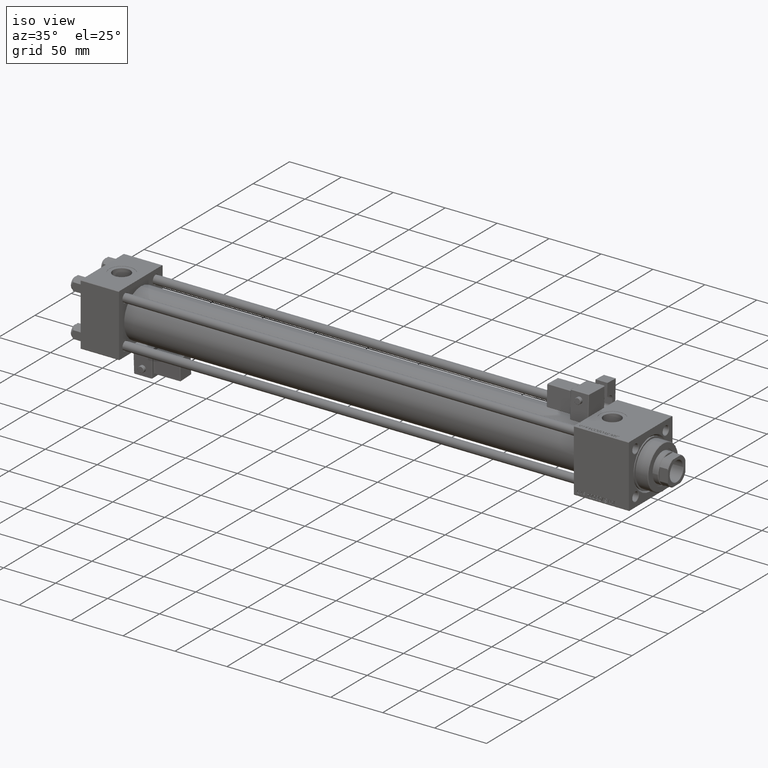
[diagram: clean part render]
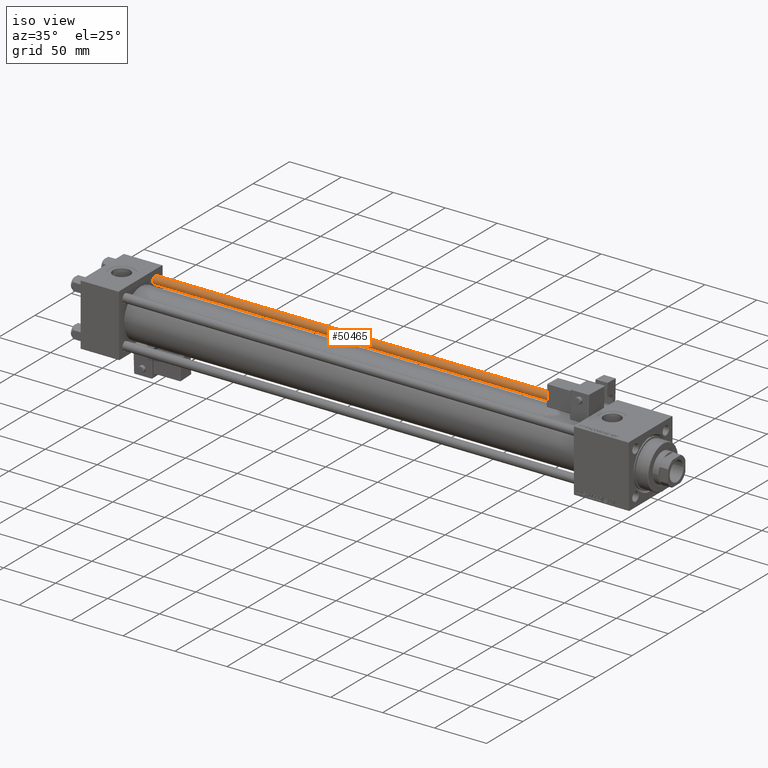
[diagram: same view with one face highlighted and labeled with its STEP entity id]
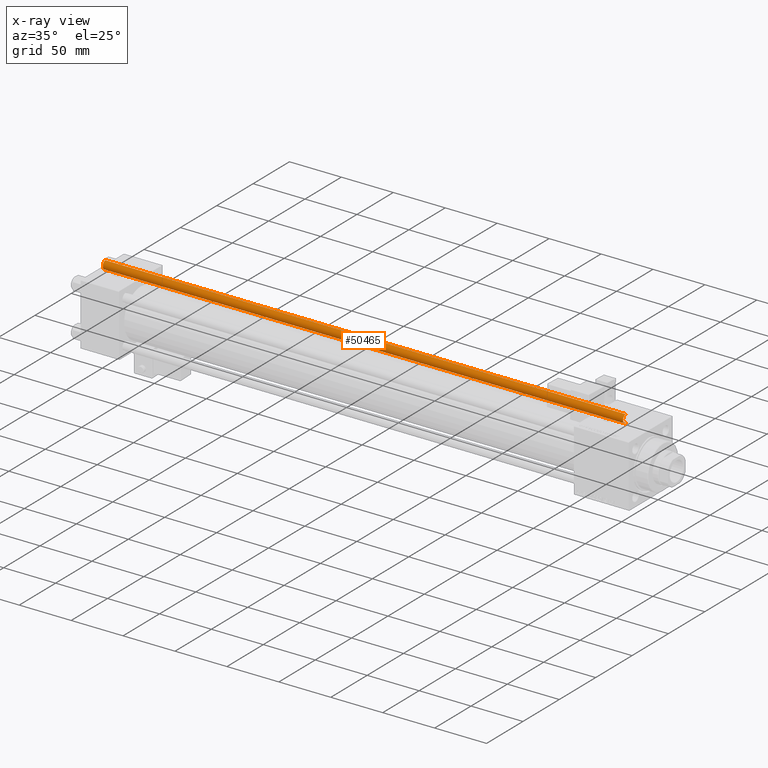
[diagram: x-ray of the same camera — body ghosted, the highlighted face saturated]
A machine part, iso view. The second image highlights one B-rep face of the part: STEP entity #50465.
The next image is the same camera in x-ray: the body ghosted, the highlighted face saturated — about 0% of this face is hidden behind the body in this view.
In plain terms, the highlighted cylindrical surface (edge-blend (fillet) strip) has radius 4 mm, axis along (-1, 0, 0).
Its self-contained STEP definition (entity closure, byte-faithful):
#872 = CARTESIAN_POINT ( 'NONE',  ( 0.000000000000000000, 0.000000000000000000, 502.0000000000000000 ) ) ;
#1559 = CARTESIAN_POINT ( 'NONE',  ( -4.000000000000000000, 0.000000000000000000, 502.0000000000000000 ) ) ;
#2486 = AXIS2_PLACEMENT_3D ( 'NONE', #3539, #44958, #33061 ) ;
#3134 = EDGE_CURVE ( 'NONE', #34039, #7314, #23472, .T. ) ;
#3539 = CARTESIAN_POINT ( 'NONE',  ( 0.000000000000000000, 0.000000000000000000, 0.4999999999999449329 ) ) ;
#7314 = VERTEX_POINT ( 'NONE', #13428 ) ;
#8741 = DIRECTION ( 'NONE',  ( -0.000000000000000000, -0.000000000000000000, -1.000000000000000000 ) ) ;
#9189 = ORIENTED_EDGE ( 'NONE', *, *, #52313, .T. ) ;
#9467 = DIRECTION ( 'NONE',  ( 0.000000000000000000, 0.000000000000000000, -1.000000000000000000 ) ) ;
#9733 = DIRECTION ( 'NONE',  ( 1.000000000000000000, 0.000000000000000000, 0.000000000000000000 ) ) ;
#10793 = ORIENTED_EDGE ( 'NONE', *, *, #19845, .T. ) ;
#13428 = CARTESIAN_POINT ( 'NONE',  ( 4.000000000000000000, 4.898587196589412829E-16, 0.4999999999999449329 ) ) ;
#13521 = CARTESIAN_POINT ( 'NONE',  ( 0.000000000000000000, 0.000000000000000000, 501.4999999999999432 ) ) ;
#14282 = DIRECTION ( 'NONE',  ( -0.000000000000000000, -0.000000000000000000, -1.000000000000000000 ) ) ;
#16044 = VECTOR ( 'NONE', #14282, 1000.000000000000000 ) ;
#16339 = CIRCLE ( 'NONE', #2486, 4.000000000000000000 ) ;
#16919 = CARTESIAN_POINT ( 'NONE',  ( -4.000000000000000000, 0.000000000000000000, 0.4999999999999449329 ) ) ;
#17407 = DIRECTION ( 'NONE',  ( -1.000000000000000000, 0.000000000000000000, 0.000000000000000000 ) ) ;
#18355 = LINE ( 'NONE', #1559, #16044 ) ;
#19845 = EDGE_CURVE ( 'NONE', #45880, #7314, #16339, .T. ) ;
#20841 = ORIENTED_EDGE ( 'NONE', *, *, #3134, .F. ) ;
#23472 = LINE ( 'NONE', #28075, #51696 ) ;
#23759 = CARTESIAN_POINT ( 'NONE',  ( 4.000000000000000000, 4.898587196589412829E-16, 501.4999999999999432 ) ) ;
#27881 = VERTEX_POINT ( 'NONE', #27900 ) ;
#27900 = CARTESIAN_POINT ( 'NONE',  ( -4.000000000000000000, 0.000000000000000000, 501.4999999999999432 ) ) ;
#28075 = CARTESIAN_POINT ( 'NONE',  ( 4.000000000000000000, 4.898587196589412829E-16, 502.0000000000000000 ) ) ;
#29522 = EDGE_LOOP ( 'NONE', ( #20841, #47940, #9189, #10793 ) ) ;
#33061 = DIRECTION ( 'NONE',  ( 1.000000000000000000, 0.000000000000000000, 0.000000000000000000 ) ) ;
#34039 = VERTEX_POINT ( 'NONE', #23759 ) ;
#35946 = DIRECTION ( 'NONE',  ( -0.000000000000000000, -0.000000000000000000, -1.000000000000000000 ) ) ;
#36674 = EDGE_CURVE ( 'NONE', #34039, #27881, #41883, .T. ) ;
#38274 = CYLINDRICAL_SURFACE ( 'NONE', #51569, 4.000000000000000000 ) ;
#41883 = CIRCLE ( 'NONE', #47039, 4.000000000000000000 ) ;
#44958 = DIRECTION ( 'NONE',  ( -0.000000000000000000, -0.000000000000000000, 1.000000000000000000 ) ) ;
#45880 = VERTEX_POINT ( 'NONE', #16919 ) ;
#47039 = AXIS2_PLACEMENT_3D ( 'NONE', #13521, #9467, #9733 ) ;
#47940 = ORIENTED_EDGE ( 'NONE', *, *, #36674, .T. ) ;
#50465 = ADVANCED_FACE ( 'NONE', ( #50697 ), #38274, .T. ) ;
#50697 = FACE_OUTER_BOUND ( 'NONE', #29522, .T. ) ;
#51569 = AXIS2_PLACEMENT_3D ( 'NONE', #872, #8741, #17407 ) ;
#51696 = VECTOR ( 'NONE', #35946, 1000.000000000000000 ) ;
#52313 = EDGE_CURVE ( 'NONE', #27881, #45880, #18355, .T. ) ;